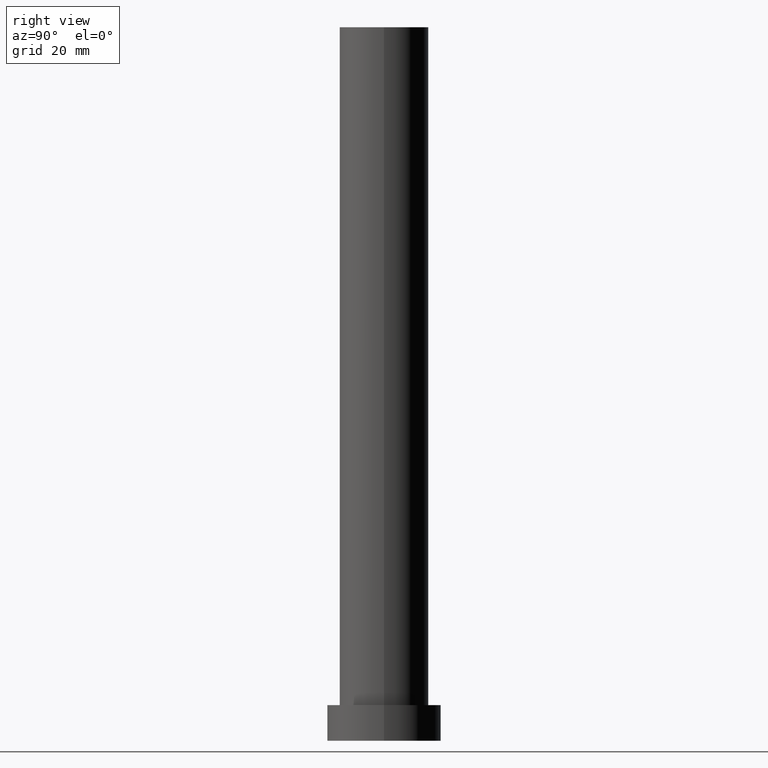
[diagram: clean part render]
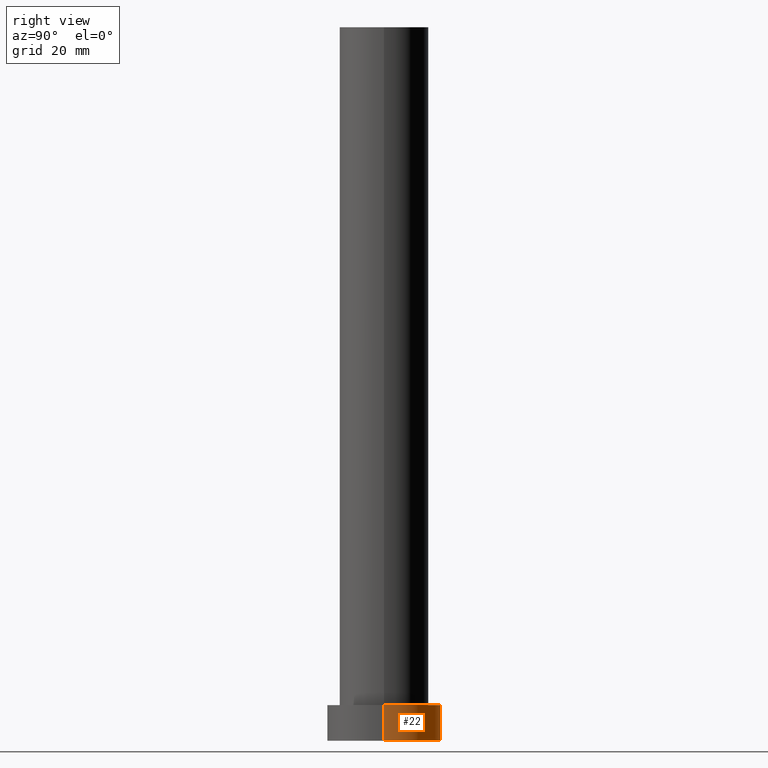
[diagram: same view with one face highlighted and labeled with its STEP entity id]
A machine part, right view. The second image highlights one B-rep face of the part: STEP entity #22.
In plain terms, the highlighted cylindrical surface (partial cylindrical patch) has radius 16 mm, axis along (-0, -0, -1).
Its self-contained STEP definition (entity closure, byte-faithful):
#5 = AXIS2_PLACEMENT_3D ( 'NONE', #249, #40, #91 ) ;
#7 = LINE ( 'NONE', #62, #203 ) ;
#16 = CARTESIAN_POINT ( 'NONE',  ( -16.00000000000000000, 0.000000000000000000, 10.00000000000000000 ) ) ;
#21 = FACE_OUTER_BOUND ( 'NONE', #33, .T. ) ;
#22 = ADVANCED_FACE ( 'NONE', ( #21 ), #217, .T. ) ;
#24 = VECTOR ( 'NONE', #189, 1000.000000000000000 ) ;
#30 = CARTESIAN_POINT ( 'NONE',  ( -16.00000000000000000, 0.000000000000000000, 0.000000000000000000 ) ) ;
#33 = EDGE_LOOP ( 'NONE', ( #160, #126, #241, #50 ) ) ;
#40 = DIRECTION ( 'NONE',  ( 0.000000000000000000, 0.000000000000000000, 1.000000000000000000 ) ) ;
#45 = DIRECTION ( 'NONE',  ( -1.000000000000000000, 0.000000000000000000, 0.000000000000000000 ) ) ;
#50 = ORIENTED_EDGE ( 'NONE', *, *, #140, .F. ) ;
#52 = LINE ( 'NONE', #16, #24 ) ;
#62 = CARTESIAN_POINT ( 'NONE',  ( 16.00000000000000000, 1.959434878635765131E-15, 10.00000000000000000 ) ) ;
#71 = EDGE_CURVE ( 'NONE', #95, #223, #196, .T. ) ;
#89 = CARTESIAN_POINT ( 'NONE',  ( 16.00000000000000000, 1.959434878635765131E-15, 0.000000000000000000 ) ) ;
#91 = DIRECTION ( 'NONE',  ( 1.000000000000000000, 0.000000000000000000, 0.000000000000000000 ) ) ;
#95 = VERTEX_POINT ( 'NONE', #130 ) ;
#99 = CARTESIAN_POINT ( 'NONE',  ( 0.000000000000000000, 0.000000000000000000, 10.00000000000000000 ) ) ;
#126 = ORIENTED_EDGE ( 'NONE', *, *, #161, .T. ) ;
#128 = CARTESIAN_POINT ( 'NONE',  ( -16.00000000000000000, 0.000000000000000000, 10.00000000000000000 ) ) ;
#130 = CARTESIAN_POINT ( 'NONE',  ( 16.00000000000000000, 1.959434878635765131E-15, 10.00000000000000000 ) ) ;
#138 = DIRECTION ( 'NONE',  ( -0.000000000000000000, -0.000000000000000000, -1.000000000000000000 ) ) ;
#140 = EDGE_CURVE ( 'NONE', #223, #204, #52, .T. ) ;
#151 = EDGE_CURVE ( 'NONE', #236, #204, #233, .T. ) ;
#160 = ORIENTED_EDGE ( 'NONE', *, *, #71, .F. ) ;
#161 = EDGE_CURVE ( 'NONE', #95, #236, #7, .T. ) ;
#169 = AXIS2_PLACEMENT_3D ( 'NONE', #212, #211, #176 ) ;
#176 = DIRECTION ( 'NONE',  ( 1.000000000000000000, 0.000000000000000000, 0.000000000000000000 ) ) ;
#189 = DIRECTION ( 'NONE',  ( -0.000000000000000000, -0.000000000000000000, -1.000000000000000000 ) ) ;
#196 = CIRCLE ( 'NONE', #5, 16.00000000000000000 ) ;
#203 = VECTOR ( 'NONE', #243, 1000.000000000000000 ) ;
#204 = VERTEX_POINT ( 'NONE', #30 ) ;
#211 = DIRECTION ( 'NONE',  ( 0.000000000000000000, 0.000000000000000000, 1.000000000000000000 ) ) ;
#212 = CARTESIAN_POINT ( 'NONE',  ( 0.000000000000000000, 0.000000000000000000, 0.000000000000000000 ) ) ;
#217 = CYLINDRICAL_SURFACE ( 'NONE', #250, 16.00000000000000000 ) ;
#223 = VERTEX_POINT ( 'NONE', #128 ) ;
#233 = CIRCLE ( 'NONE', #169, 16.00000000000000000 ) ;
#236 = VERTEX_POINT ( 'NONE', #89 ) ;
#241 = ORIENTED_EDGE ( 'NONE', *, *, #151, .T. ) ;
#243 = DIRECTION ( 'NONE',  ( -0.000000000000000000, -0.000000000000000000, -1.000000000000000000 ) ) ;
#249 = CARTESIAN_POINT ( 'NONE',  ( 0.000000000000000000, 0.000000000000000000, 10.00000000000000000 ) ) ;
#250 = AXIS2_PLACEMENT_3D ( 'NONE', #99, #138, #45 ) ;